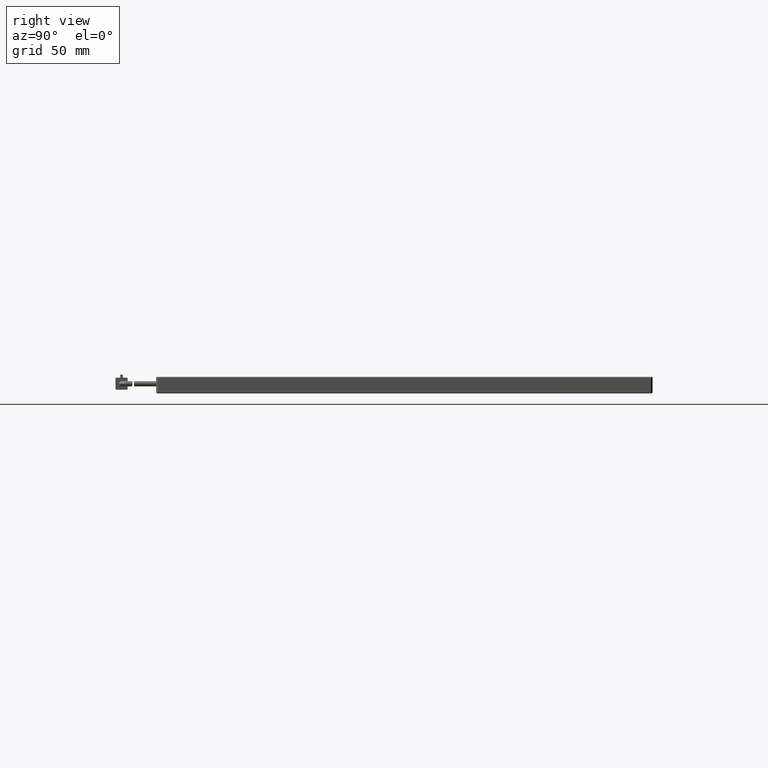
[diagram: clean part render]
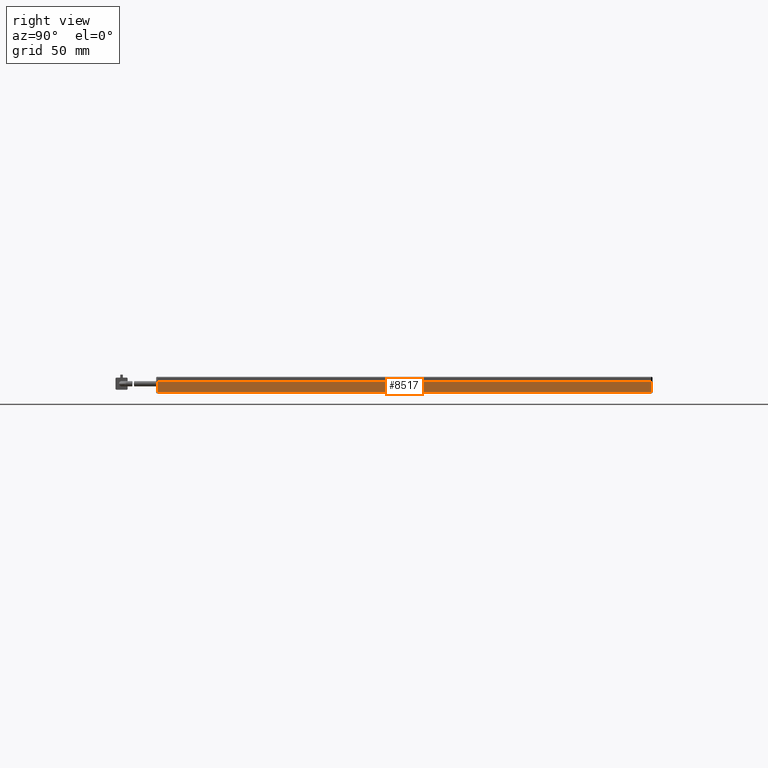
[diagram: same view with one face highlighted and labeled with its STEP entity id]
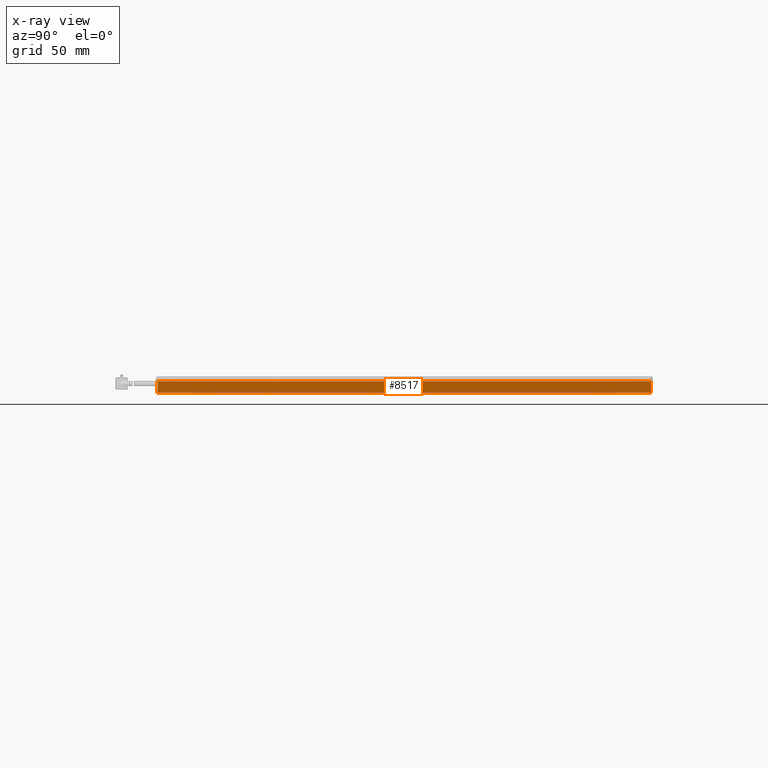
[diagram: x-ray of the same camera — body ghosted, the highlighted face saturated]
A machine part, right view. The second image highlights one B-rep face of the part: STEP entity #8517.
The next image is the same camera in x-ray: the body ghosted, the highlighted face saturated — about 0% of this face is hidden behind the body in this view.
In plain terms, the highlighted planar face has unit normal (-1, 0, 0).
Its self-contained STEP definition (entity closure, byte-faithful):
#91 = DIRECTION ( 'NONE',  ( 0.0000000000000000000, 0.0000000000000000000, 1.000000000000000000 ) ) ;
#347 = LINE ( 'NONE', #28755, #26873 ) ;
#665 = EDGE_CURVE ( 'NONE', #11388, #25010, #347, .T. ) ;
#2517 = EDGE_CURVE ( 'NONE', #18901, #11388, #23426, .T. ) ;
#3028 = CARTESIAN_POINT ( 'NONE',  ( 133.7560923609355000, -100.6934259520940000, 8.000000000019099400 ) ) ;
#4290 = EDGE_CURVE ( 'NONE', #30191, #18901, #18336, .T. ) ;
#5114 = ORIENTED_EDGE ( 'NONE', *, *, #18759, .F. ) ;
#8015 = CARTESIAN_POINT ( 'NONE',  ( 133.7560923609354400, 228.3065740479060300, 0.5000000000190296700 ) ) ;
#8517 = ADVANCED_FACE ( 'NONE', ( #29172 ), #12594, .F. ) ;
#10891 = DIRECTION ( 'NONE',  ( 0.0000000000000000000, 0.0000000000000000000, 1.000000000000000000 ) ) ;
#11379 = CARTESIAN_POINT ( 'NONE',  ( 133.7560923609355000, -100.6934259520940000, 0.5000000000190426600 ) ) ;
#11388 = VERTEX_POINT ( 'NONE', #11479 ) ;
#11479 = CARTESIAN_POINT ( 'NONE',  ( 133.7560923609355500, -99.69342595209394600, 8.000000000019099400 ) ) ;
#12594 = PLANE ( 'NONE',  #29139 ) ;
#15614 = CARTESIAN_POINT ( 'NONE',  ( 133.7560923609355000, -99.69342595209400300, 8.000000000019099400 ) ) ;
#15731 = EDGE_LOOP ( 'NONE', ( #31631, #5114, #26010, #27372 ) ) ;
#16611 = VECTOR ( 'NONE', #91, 1000.000000000000000 ) ;
#18336 = LINE ( 'NONE', #11379, #19534 ) ;
#18759 = EDGE_CURVE ( 'NONE', #25010, #30191, #20519, .T. ) ;
#18901 = VERTEX_POINT ( 'NONE', #25450 ) ;
#19534 = VECTOR ( 'NONE', #31843, 1000.000000000000000 ) ;
#20519 = LINE ( 'NONE', #22608, #22163 ) ;
#22163 = VECTOR ( 'NONE', #32817, 1000.000000000000000 ) ;
#22608 = CARTESIAN_POINT ( 'NONE',  ( 133.7560923609355000, 228.3065740479059100, 8.000000000019099400 ) ) ;
#23426 = LINE ( 'NONE', #15614, #16611 ) ;
#25010 = VERTEX_POINT ( 'NONE', #27814 ) ;
#25450 = CARTESIAN_POINT ( 'NONE',  ( 133.7560923609355000, -99.69342595209400300, 0.5000000000190444300 ) ) ;
#26010 = ORIENTED_EDGE ( 'NONE', *, *, #665, .F. ) ;
#26873 = VECTOR ( 'NONE', #28651, 1000.000000000000000 ) ;
#27372 = ORIENTED_EDGE ( 'NONE', *, *, #2517, .F. ) ;
#27814 = CARTESIAN_POINT ( 'NONE',  ( 133.7560923609355500, 228.3065740479059100, 8.000000000019099400 ) ) ;
#28651 = DIRECTION ( 'NONE',  ( 0.0000000000000000000, 1.000000000000000000, -0.0000000000000000000 ) ) ;
#28755 = CARTESIAN_POINT ( 'NONE',  ( 133.7560923609355000, -100.6934259520940000, 8.000000000019099400 ) ) ;
#28791 = DIRECTION ( 'NONE',  ( -1.000000000000000000, 0.0000000000000000000, 0.0000000000000000000 ) ) ;
#29139 = AXIS2_PLACEMENT_3D ( 'NONE', #3028, #28791, #10891 ) ;
#29172 = FACE_OUTER_BOUND ( 'NONE', #15731, .T. ) ;
#30191 = VERTEX_POINT ( 'NONE', #8015 ) ;
#31631 = ORIENTED_EDGE ( 'NONE', *, *, #4290, .F. ) ;
#31843 = DIRECTION ( 'NONE',  ( -0.0000000000000000000, -1.000000000000000000, -0.0000000000000000000 ) ) ;
#32817 = DIRECTION ( 'NONE',  ( -0.0000000000000000000, -0.0000000000000000000, -1.000000000000000000 ) ) ;